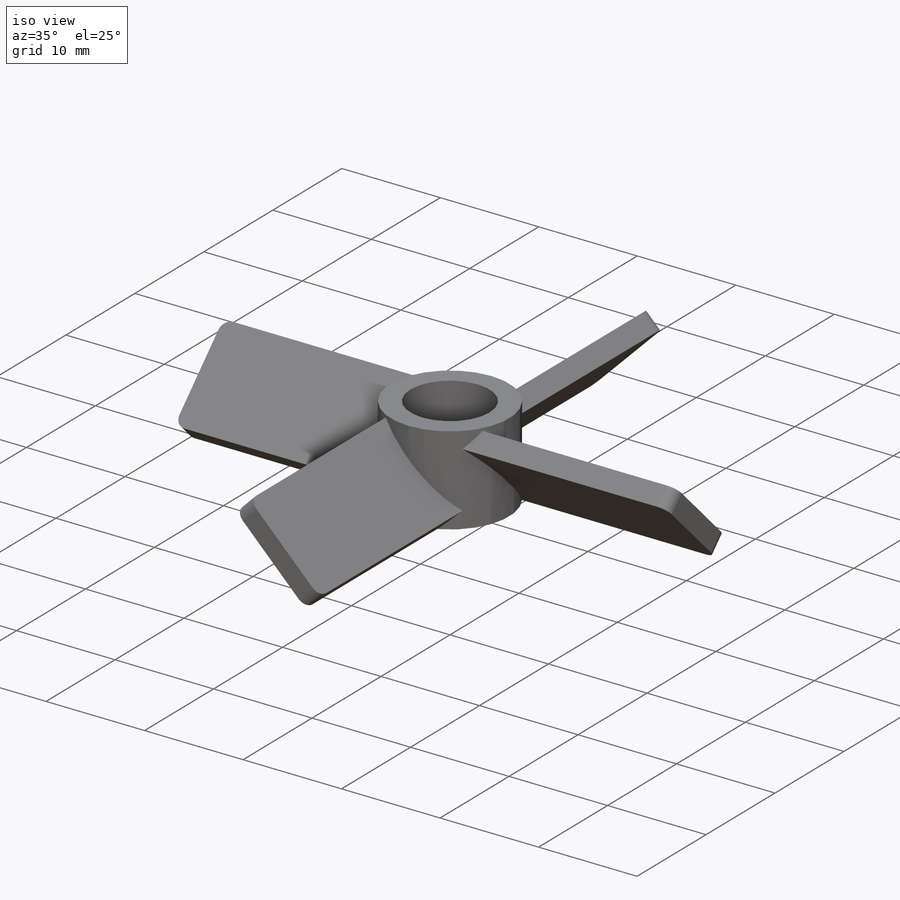
[diagram: iso view]
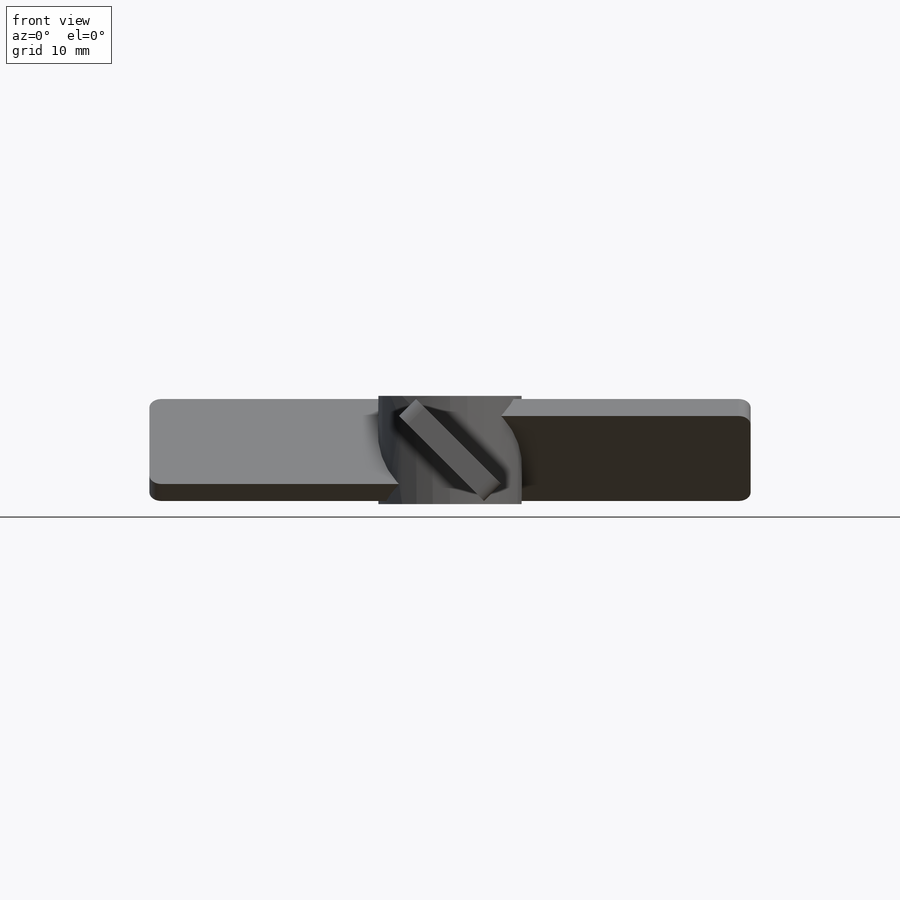
[diagram: front view]
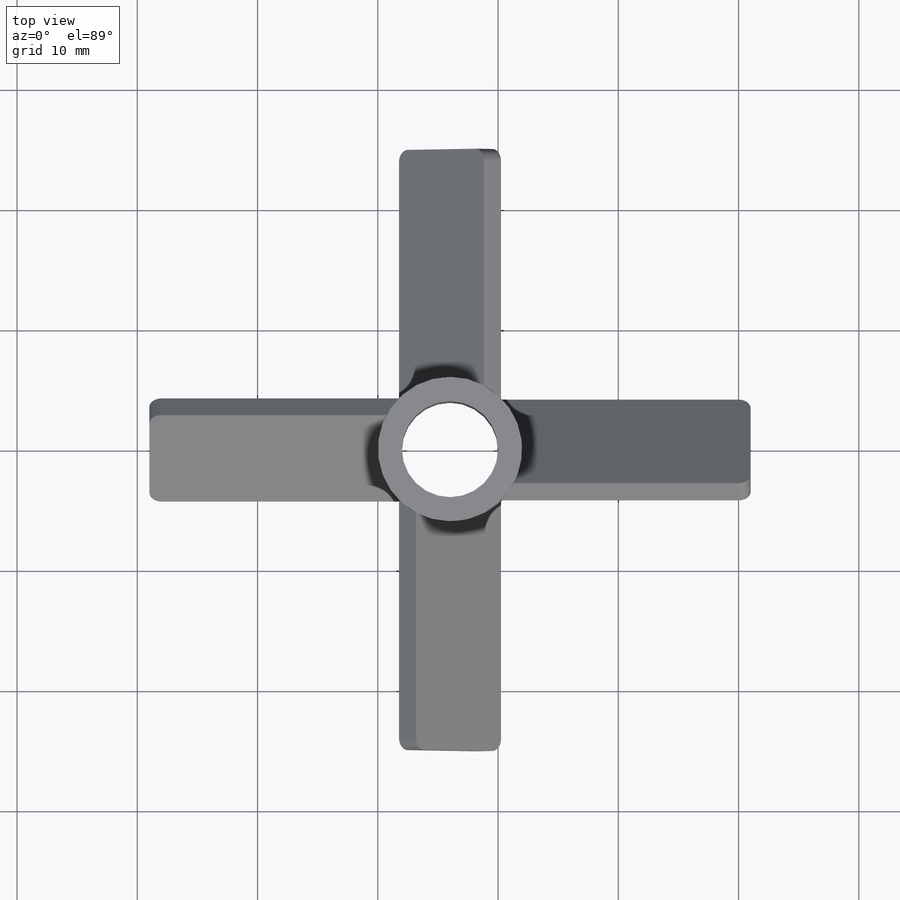
[diagram: top view]
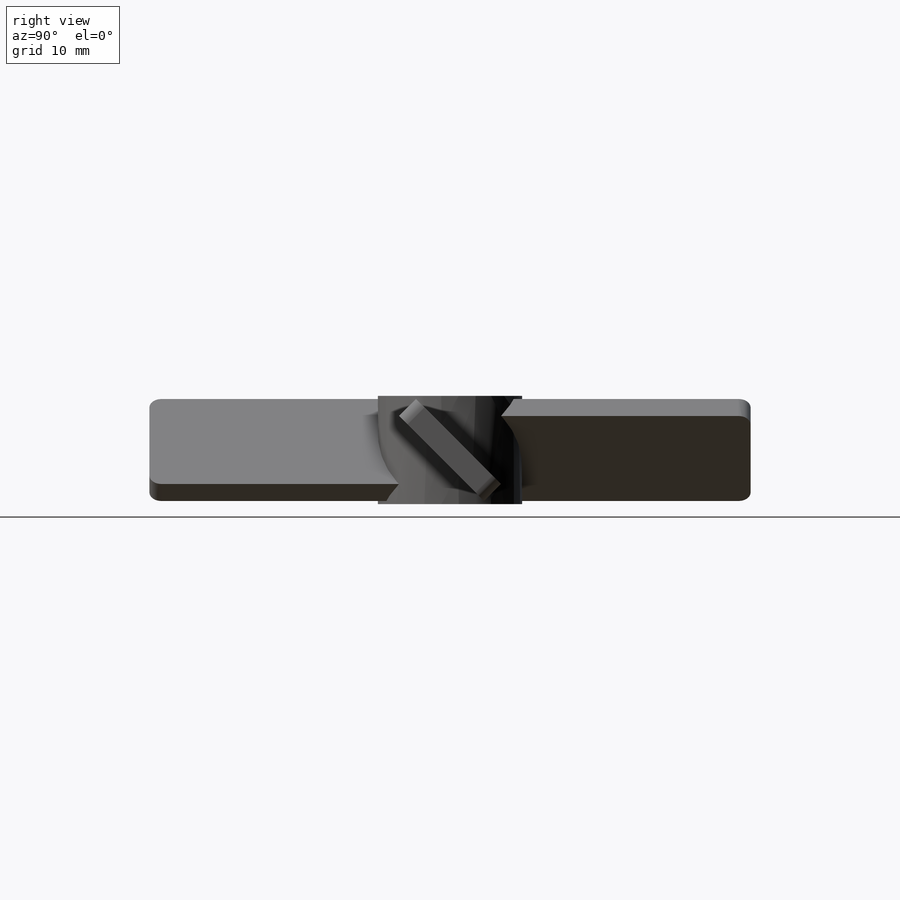
[diagram: right view]
SOLIDWORKS PART (.sldprt)
format: sldprt  version: not decoded by parser v0  size: 206,336 bytes
history: native  units: mm
features: plane x4, sketch x4, material x1, extrude x1, pattern_circular x1, cut_extrude x1, fillet x1 (+8 scaffold rows collapsed)
feature tree (21):
  scaffold x8  (default folders/planes/origin — collapsed)
  material  "Material <sin especificar>"
  plane  "Alzado"
  plane  "Planta"
  plane  "Vista lateral"
  sketch  "Croquis1"  dims[c1.D1=~12.975358mm c2.D1=45.0deg c2.D2=2.0mm c2.D3=10.0mm]
  plane  "Plano1"  Offset=21mm
  sketch  "Croquis2"  dims[c1.D1=2.0mm c1.D2=10.0mm c1.D3=~4.064086mm c2.D3=45.0deg]
  sketch  "Croquis3"  dims[D1=~8.485281mm D2=4.0mm]
  extrude  "Saliente-Extruir1"  Depth=9mm
  pattern_circular  "MatrizC2"  Count=4 Angle=360deg
  sketch  "Croquis4"  dims[D1=8.0mm]
  cut_extrude  "Cortar-Extruir1"  [1 undecoded]
  fillet  "Redondeo1"  Radius=1mm
decode coverage: 7 of 8 modeling features carry decoded parameters
note: ~ marks probable driven/reference dimensions
note: 1 parameter value undecoded
note: suppression state not decoded; provenance and decode notes live in map.json
